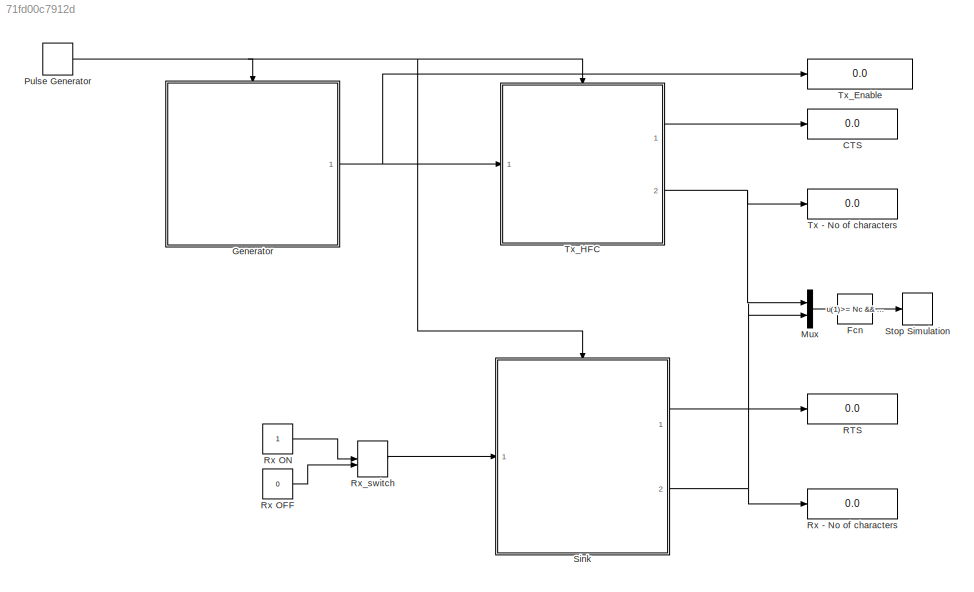
MODEL slx_71fd00c7912d
KIND model
CONFIG AbsTol = auto
CONFIG FixedStep = auto
CONFIG InitFcn = Init_mat_4;
CONFIG MaxStep = auto
CONFIG MinStep = auto
CONFIG RelTol = 1e-3
CONFIG SampleTimeConstraint = Unconstrained
CONFIG Solver = ode45
CONFIG SolverMode = Auto
CONFIG SolverName = ode45
CONFIG StartFcn = Start_mat_4;
CONFIG StartTime = 0.0
CONFIG StopFcn = Stop_mat_4;
CONFIG StopTime = inf
BLOCK [Display] CTS
  Decimation = 1
  Ports = [1]
BLOCK [Fcn] Fcn
  Expr = u(1)>= Nc && u(2)>=Nc
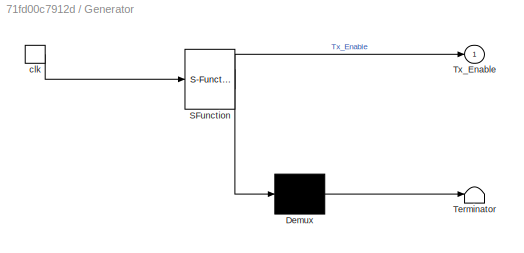
BLOCK [SubSystem] Generator
  ErrorFcn = Stateflow.Translate.translate
  PermitHierarchicalResolution = ExplicitOnly
  Ports = [0, 1, 0, 1]
  RequestExecContextInheritance = off
  SFBlockType = Chart
  TreatAsAtomicUnit = on
BLOCK [Demux] Generator/ Demux 
  Outputs = 1
  Ports = [1, 1]
BLOCK [S-Function] Generator/ SFunction 
  EnableBusSupport = on
  FunctionName = sf_sfun
  PortCounts = [1 2]
  Ports = [1, 2]
  Tag = Stateflow S-Function lab_exer_mat_4 1
BLOCK [Terminator] Generator/ Terminator 
BLOCK [Outport] Generator/Tx_Enable
  IconDisplay = Port number
BLOCK [TriggerPort] Generator/clk
  Ports = [0, 1]
  ShowOutputPort = on
  StatesWhenEnabling = held
BLOCK [Mux] Mux
  DisplayOption = bar
  Inputs = 2
  Ports = [2, 1]
BLOCK [DiscretePulseGenerator] Pulse Generator
  Period = Ts
  Ports = [0, 1]
  PulseType = Time based
  PulseWidth = 50
BLOCK [Display] RTS
  Decimation = 1
  Ports = [1]
BLOCK [Display] Rx - No of characters
  Decimation = 1
  Ports = [1]
BLOCK [Constant] Rx OFF
  Value = 0
BLOCK [Constant] Rx ON
BLOCK [ManualSwitch] Rx_switch
  CurrentSetting = 0
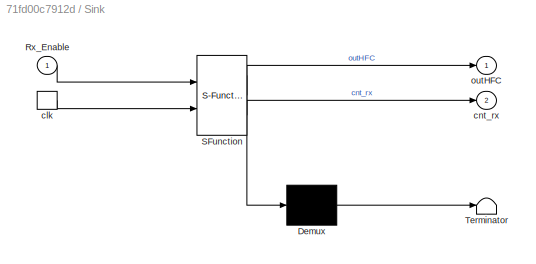
BLOCK [SubSystem] Sink
  ErrorFcn = Stateflow.Translate.translate
  PermitHierarchicalResolution = ExplicitOnly
  Ports = [1, 2, 0, 1]
  RequestExecContextInheritance = off
  SFBlockType = Chart
  TreatAsAtomicUnit = on
BLOCK [Demux] Sink/ Demux 
  Outputs = 1
  Ports = [1, 1]
BLOCK [S-Function] Sink/ SFunction 
  EnableBusSupport = on
  FunctionName = sf_sfun
  PortCounts = [2 3]
  Ports = [2, 3]
  Tag = Stateflow S-Function lab_exer_mat_4 2
BLOCK [Terminator] Sink/ Terminator 
BLOCK [Inport] Sink/Rx_Enable
  IconDisplay = Port number
BLOCK [TriggerPort] Sink/clk
  Ports = [0, 1]
  ShowOutputPort = on
  StatesWhenEnabling = held
  TriggerType = either
BLOCK [Outport] Sink/cnt_rx
  IconDisplay = Port number
  Port = 2
BLOCK [Outport] Sink/outHFC
  IconDisplay = Port number
BLOCK [Stop] Stop Simulation
BLOCK [Display] Tx - No of characters
  Decimation = 1
  Ports = [1]
BLOCK [Display] Tx_Enable
  Decimation = 1
  Ports = [1]
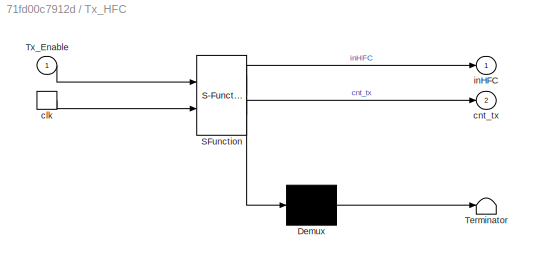
BLOCK [SubSystem] Tx_HFC
  ErrorFcn = Stateflow.Translate.translate
  PermitHierarchicalResolution = ExplicitOnly
  Ports = [1, 2, 0, 1]
  RequestExecContextInheritance = off
  SFBlockType = Chart
  TreatAsAtomicUnit = on
BLOCK [Demux] Tx_HFC/ Demux 
  Outputs = 1
  Ports = [1, 1]
BLOCK [S-Function] Tx_HFC/ SFunction 
  EnableBusSupport = on
  FunctionName = sf_sfun
  PortCounts = [2 3]
  Ports = [2, 3]
  Tag = Stateflow S-Function lab_exer_mat_4 3
BLOCK [Terminator] Tx_HFC/ Terminator 
BLOCK [Inport] Tx_HFC/Tx_Enable
  IconDisplay = Port number
BLOCK [TriggerPort] Tx_HFC/clk
  Ports = [0, 1]
  ShowOutputPort = on
  StatesWhenEnabling = held
  TriggerType = either
BLOCK [Outport] Tx_HFC/cnt_tx
  IconDisplay = Port number
  Port = 2
BLOCK [Outport] Tx_HFC/inHFC
  IconDisplay = Port number
LINE Fcn:1 -> Stop Simulation:1
NET Generator:1 -> Tx_Enable:1, Tx_HFC:1
LINE Mux:1 -> Fcn:1
NET Pulse Generator:1 -> Generator:trigger, Sink:trigger, Tx_HFC:trigger
LINE Rx OFF:1 -> Rx_switch:2
LINE Rx ON:1 -> Rx_switch:1
LINE Rx_switch:1 -> Sink:1
LINE Sink:1 -> RTS:1
NET Sink:2 -> Mux:2, Rx - No of characters:1
LINE Tx_HFC:1 -> CTS:1
NET Tx_HFC:2 -> Mux:1, Tx - No of characters:1
note: NET lines group one-source signal fan-out (src -> all destinations, sorted); 1:1 wires keep LINE
CHART Generator states=10 transitions=17
  STATE_LABEL 'C'
  STATE_LABEL 'UpCounter\n\nentry: upc = upc + 1;\nduring: upc = upc + 1;'
  STATE_LABEL '{upc=0;}'
  STATE_LABEL 'UpCounter\n\nentry: upc = upc + 1;\nduring: upc = upc + 1;'
  STATE_LABEL 'D'
  STATE_LABEL 'S0\n\nentry: cnt = cnt + 1;\nml.Tx_array[cnt] = ml.randi(ml.Range, 1, 1);\nml.time_vals[cnt] = upc;\n'
  STATE_LABEL 'S_end\n\nentry: Vind = 1;\nTx_Enable = 1;'
  STATE_LABEL 'S1\n'
  STATE_LABEL 'S4\n'
  STATE_LABEL 'S3\n'
  STATE_LABEL 'S5\n'
  STATE_LABEL 'S2\n'
  STATE_LABEL '{cnt=0;Vind=0;Tx_Enable = 0;}'
  STATE_LABEL '[cnt==ml.Nc]'
  STATE_LABEL '{val=ml.rand(1);}'
  STATE_LABEL '{val=ml.rand(1);}'
  STATE_LABEL '[val>ml.qs[3]]'
  STATE_LABEL '[val>ml.qs[2]]'
  STATE_LABEL '[val>ml.qs[1]]'
  STATE_LABEL '{val=ml.rand(1);}'
  STATE_LABEL '[val<=ml.qs[2]]'
  STATE_LABEL '[val<=ml.qs[1]]'
  STATE_LABEL '[val<=ml.qs[3]]'
  STATE_LABEL 'S0\n\nentry: cnt = cnt + 1;\nml.Tx_array[cnt] = ml.randi(ml.Range, 1, 1);\nml.time_vals[cnt] = upc;\n'
  STATE_LABEL 'S_end\n\nentry: Vind = 1;\nTx_Enable = 1;'
  STATE_LABEL 'S1\n'
  STATE_LABEL 'S4\n'
  STATE_LABEL 'S3\n'
  STATE_LABEL 'S5\n'
  STATE_LABEL 'S2\n'
CHART Sink states=7 transitions=13
  STATE_LABEL 'Rx'
  STATE_LABEL 'IniState'
  STATE_LABEL "RxState\nen: ml('DIn_1');\n      Val_rx = ml.d2r_s1;\n      cnt_rx = cnt_rx + 1;\n      ml.Rx_array[cnt_rx] = Val_rx;"
  STATE_LABEL '{cnt_rx = 0;}'
  STATE_LABEL '[ml.b2r_s1 == 0 ]'
  STATE_LABEL "{ml('B2R_1'); }"
  STATE_LABEL 'IniState'
  STATE_LABEL "RxState\nen: ml('DIn_1');\n      Val_rx = ml.d2r_s1;\n      cnt_rx = cnt_rx + 1;\n      ml.Rx_array[cnt_rx] = Val_rx;"
  STATE_LABEL 'HFC_states'
  STATE_LABEL "HFCcon\nLBstatus_rx = Rx_Enable;\nml.rts_s1 = LBstatus_rx;\noutHFC = LBstatus_rx;\nml('RTS_1');"
  STATE_LABEL 'S2'
  STATE_LABEL 'S1\nLBstatus_rx = Rx_Enable;'
  STATE_LABEL '[LBstatus_rx == 0]'
  STATE_LABEL '[LBstatus_rx == 0]'
  STATE_LABEL "HFCcon\nLBstatus_rx = Rx_Enable;\nml.rts_s1 = LBstatus_rx;\noutHFC = LBstatus_rx;\nml('RTS_1');"
  STATE_LABEL 'S2'
  STATE_LABEL 'S1\nLBstatus_rx = Rx_Enable;'
CHART Tx_HFC states=4 transitions=10
  STATE_LABEL "IniState\nml('CTS_1');\nLBstatus_tx = ml.cts_s1;\ninHFC = LBstatus_tx;"
  STATE_LABEL "Dcalc\nen: ml('CTS_1');\n      LBstatus_tx = ml.cts_s1;\n      inHFC = LBstatus_tx;"
  STATE_LABEL 'Idle'
  STATE_LABEL "TxState\nen: cnt_tx = cnt_tx + 1;\n      Val_tx = ml.Tx_array[cnt_tx];\n      ml.d2o_s1 = Val_tx;\n      ml('DOut_1');\n\t//ml.pause(ml.pause_t);"
